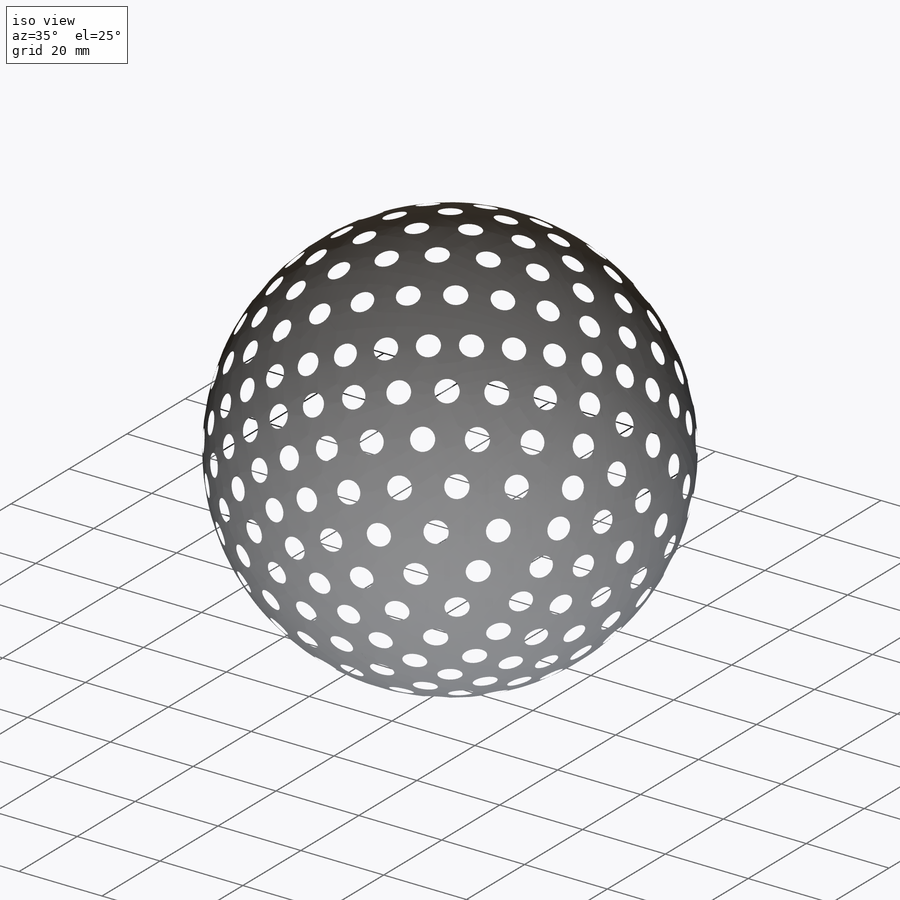
[diagram: iso view]
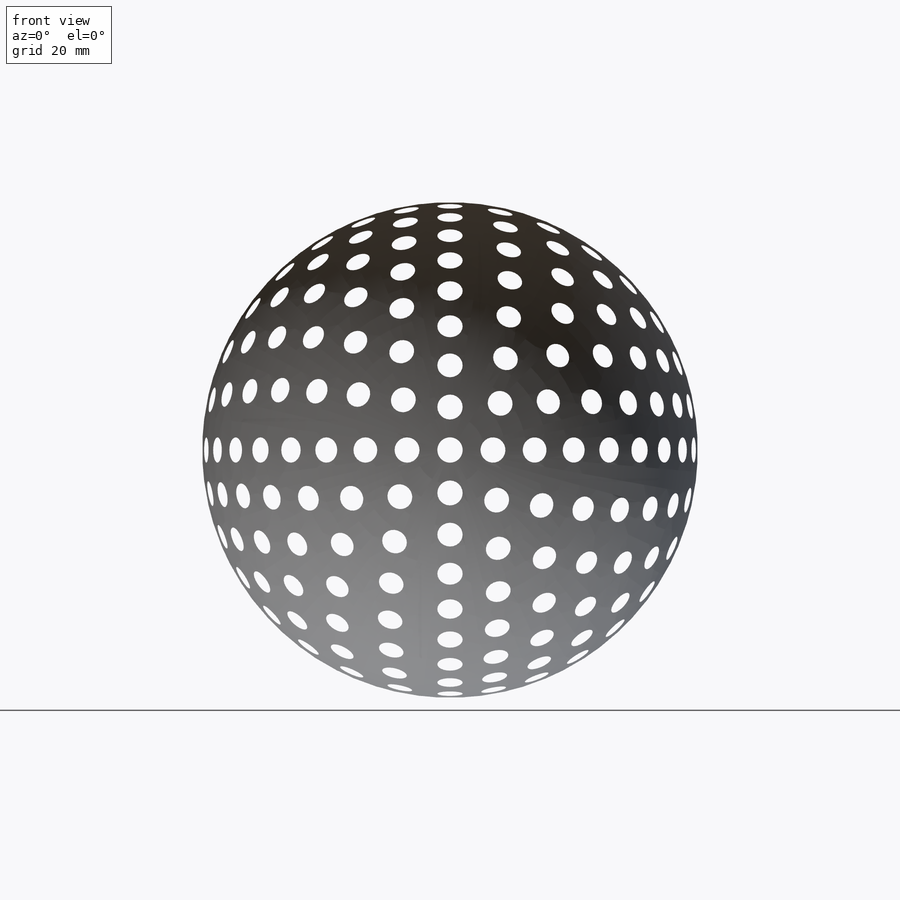
[diagram: front view]
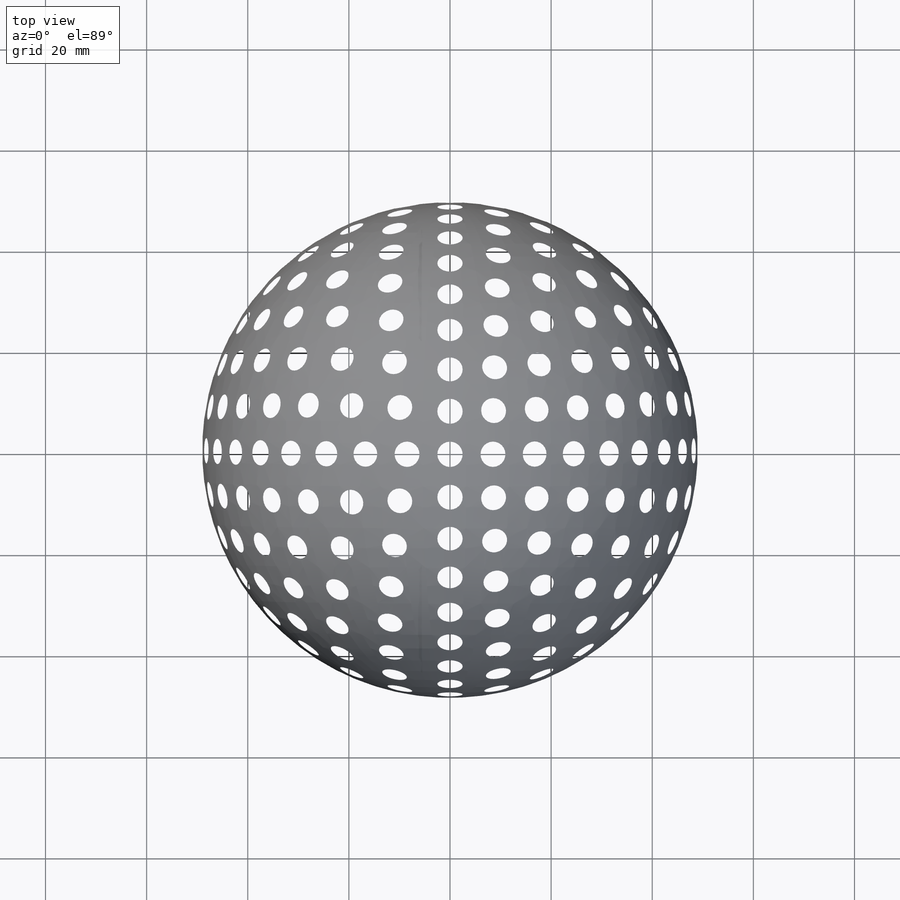
[diagram: top view]
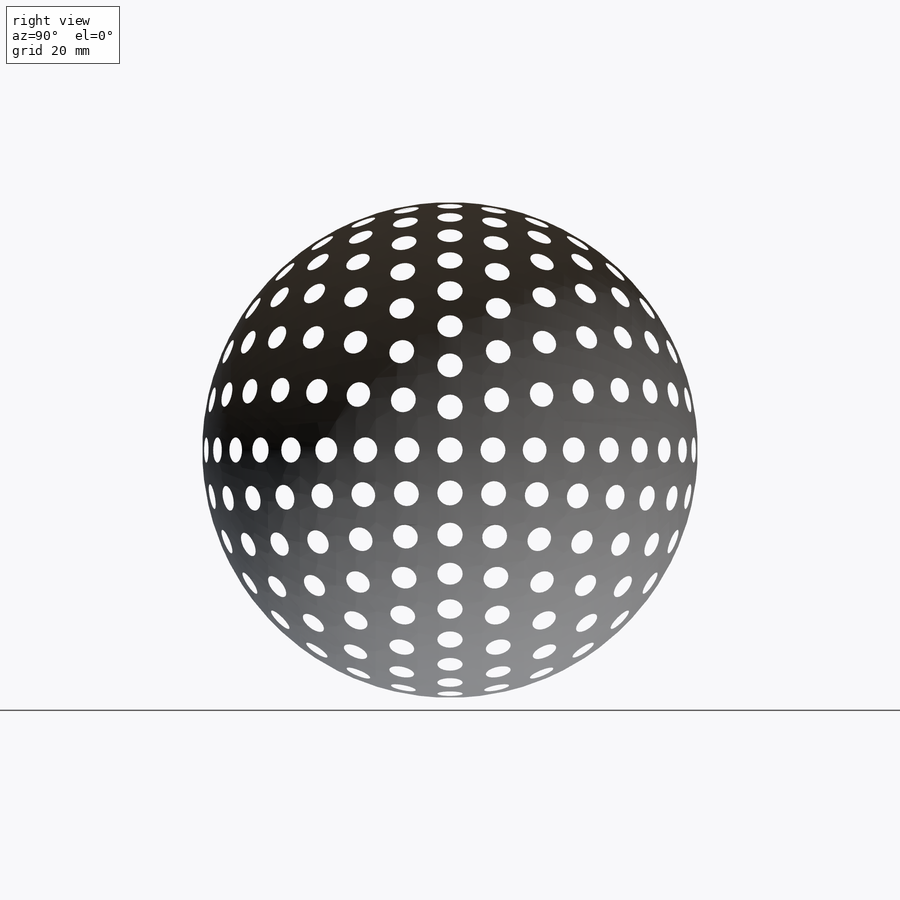
[diagram: right view]
SOLIDWORKS PART (.sldprt)
format: sldprt  version: not decoded by parser v0  size: 2,561,536 bytes
history: native  units: mm
features: plane x13, sketch x11, pattern_circular x2, boolean_combine x2, material x1, extrude x1, mirror x1 (+10 scaffold rows collapsed)
feature tree (41):
  scaffold x10  (default folders/planes/origin — collapsed)
  material  "Stahl"
  plane  "Ebene vorne"
  plane  "Ebene oben"
  plane  "Ebene rechts"
  sketch  "Skizze1"  dims[c1.D1=14.7622mm c2.D1=50.0mm c3.D1=90.0deg c3.D3=1.0mm c3.D4=1.0mm]
  sketch  "Skizze9"  dims[D1=5.0mm]
  extrude  "Aufsatz-Linear austragen3"  Depth=55mm
  pattern_circular  "Kreismuster7"  Count=10 Angle=90deg
  plane  "Ebene46"
  plane  "Ebene47"
  plane  "Ebene48"
  plane  "Ebene49"
  plane  "Ebene50"
  plane  "Ebene51"
  plane  "Ebene52"
  plane  "Ebene53"
  plane  "Ebene54"
  plane  "Ebene55"
  sketch  "3D-Skizze5"  dims[D1=10.0 D3=10.0mm D2=1.0 D4=1.0mm]
  sketch  "Kurvenmuster11"  dims[D1=9.0 D3=10.0mm D2=1.0 D4=1.0mm]
  sketch  "Kurvenmuster12"  dims[D1=8.0 D3=10.0mm D2=1.0 D4=1.0mm]
  sketch  "Kurvenmuster13"  dims[D1=7.0 D3=10.0mm D2=1.0 D4=1.0mm]
  sketch  "Kurvenmuster14"  dims[D1=6.0 D3=10.0mm D2=1.0 D4=1.0mm]
  sketch  "Kurvenmuster15"  dims[D1=5.0 D3=10.0mm D2=1.0 D4=1.0mm]
  sketch  "Kurvenmuster16"  dims[D1=4.0 D3=10.0mm D2=1.0 D4=1.0mm]
  sketch  "Kurvenmuster17"  dims[D1=3.0 D3=10.0mm D2=1.0 D4=1.0mm]
  sketch  "Kurvenmuster18"  dims[D1=2.0 D3=10.0mm D2=1.0 D4=1.0mm]
  boolean_combine  "Kombinieren2"
  pattern_circular  "Kreismuster13"  Count=4 Angle=360deg
  boolean_combine  "Kombinieren6"
  mirror  "Spiegeln2"
decode coverage: 14 of 17 modeling features carry decoded parameters
note: suppression state not decoded; provenance and decode notes live in map.json
